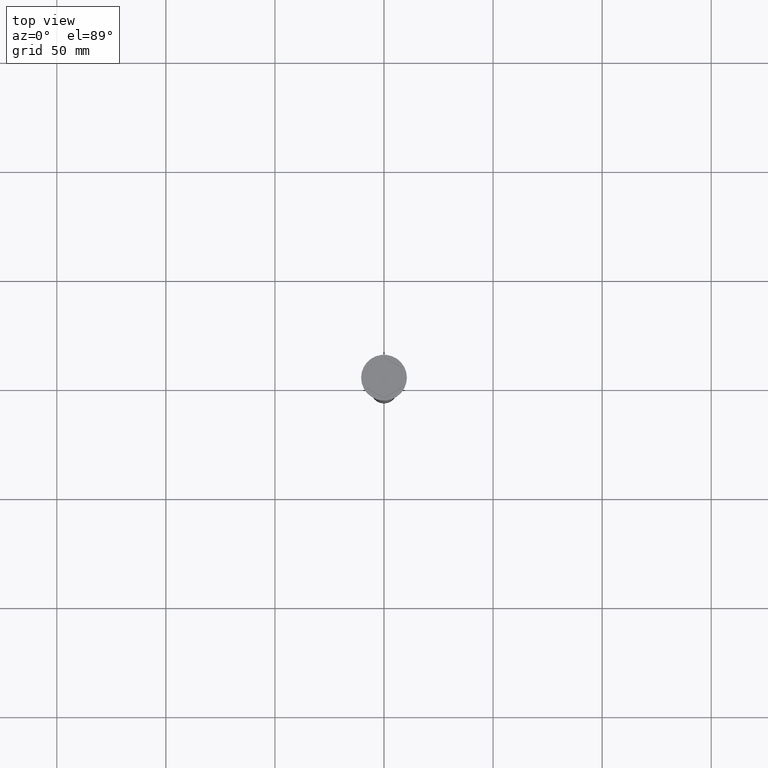
[diagram: clean part render]
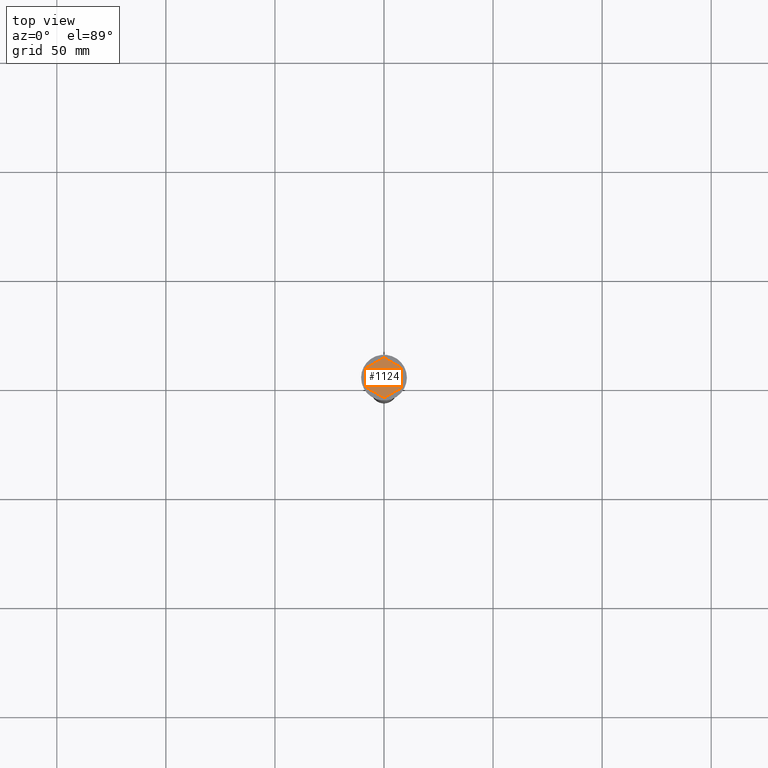
[diagram: same view with one face highlighted and labeled with its STEP entity id]
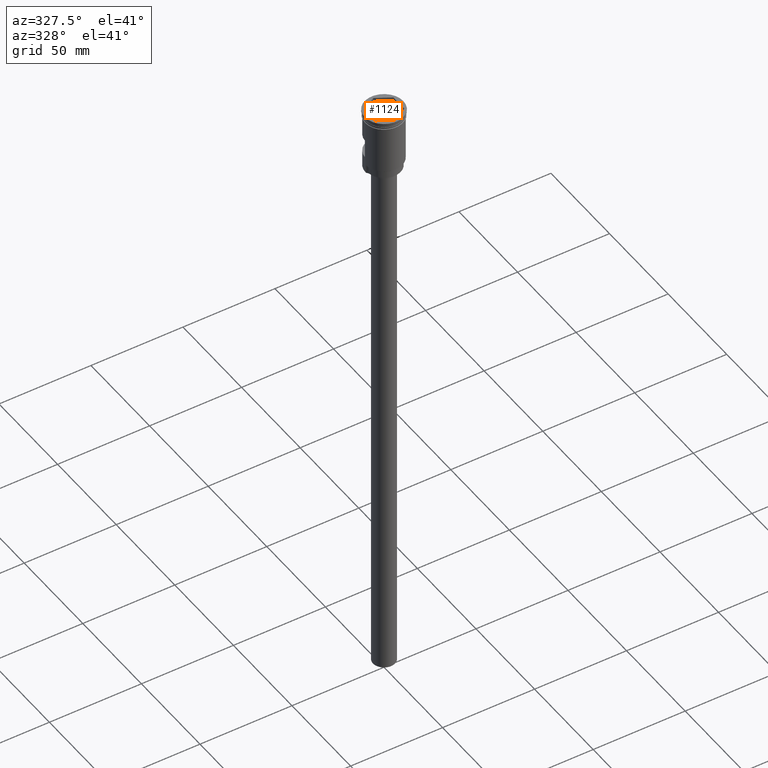
[diagram: same view with one face highlighted and labeled with its STEP entity id]
A machine part, top view. The second image highlights one B-rep face of the part: STEP entity #1124.
A second angle (auxiliary view) of the same face is appended — the face is thin or edge-on in the first view.
In plain terms, the highlighted planar face has unit normal (-0, 0, 1).
Its self-contained STEP definition (entity closure, byte-faithful):
#16 = VERTEX_POINT ( 'NONE', #26 ) ;
#26 = CARTESIAN_POINT ( 'NONE',  ( 8.000000000000000000, -4.618802153517008513, -2.000000000000000000 ) ) ;
#113 = VERTEX_POINT ( 'NONE', #647 ) ;
#213 = EDGE_CURVE ( 'NONE', #373, #113, #494, .T. ) ;
#233 = CARTESIAN_POINT ( 'NONE',  ( 0.000000000000000000, 9.237604307034009921, -2.000000000000000000 ) ) ;
#236 = LINE ( 'NONE', #729, #815 ) ;
#237 = ORIENTED_EDGE ( 'NONE', *, *, #259, .T. ) ;
#245 = VECTOR ( 'NONE', #1345, 999.9999999999998863 ) ;
#259 = EDGE_CURVE ( 'NONE', #1091, #16, #991, .T. ) ;
#272 = ORIENTED_EDGE ( 'NONE', *, *, #1311, .T. ) ;
#274 = DIRECTION ( 'NONE',  ( -0.000000000000000000, 0.000000000000000000, 1.000000000000000000 ) ) ;
#310 = EDGE_LOOP ( 'NONE', ( #869, #1515, #1358, #1248, #237, #272 ) ) ;
#320 = VECTOR ( 'NONE', #1004, 999.9999999999998863 ) ;
#373 = VERTEX_POINT ( 'NONE', #1027 ) ;
#375 = VECTOR ( 'NONE', #883, 999.9999999999998863 ) ;
#394 = LINE ( 'NONE', #763, #375 ) ;
#406 = PLANE ( 'NONE',  #633 ) ;
#494 = LINE ( 'NONE', #606, #1374 ) ;
#495 = CARTESIAN_POINT ( 'NONE',  ( -4.000000000000000000, -6.928203230275510549, -2.000000000000000000 ) ) ;
#606 = CARTESIAN_POINT ( 'NONE',  ( -8.000000000000000000, 0.000000000000000000, -2.000000000000000000 ) ) ;
#609 = VECTOR ( 'NONE', #1241, 999.9999999999998863 ) ;
#633 = AXIS2_PLACEMENT_3D ( 'NONE', #1384, #274, #1154 ) ;
#647 = CARTESIAN_POINT ( 'NONE',  ( -8.000000000000000000, -4.618802153517008513, -2.000000000000000000 ) ) ;
#652 = CARTESIAN_POINT ( 'NONE',  ( -3.999999999999998224, 6.928203230275506108, -2.000000000000000000 ) ) ;
#681 = VERTEX_POINT ( 'NONE', #233 ) ;
#729 = CARTESIAN_POINT ( 'NONE',  ( 8.000000000000000000, 0.000000000000000000, -2.000000000000000000 ) ) ;
#763 = CARTESIAN_POINT ( 'NONE',  ( 3.999999999999998224, 6.928203230275506108, -2.000000000000000000 ) ) ;
#775 = CARTESIAN_POINT ( 'NONE',  ( 8.000000000000000000, 4.618802153517003184, -2.000000000000000000 ) ) ;
#815 = VECTOR ( 'NONE', #1315, 1000.000000000000000 ) ;
#869 = ORIENTED_EDGE ( 'NONE', *, *, #1080, .T. ) ;
#883 = DIRECTION ( 'NONE',  ( -0.8660254037844387076, 0.5000000000000001110, 0.000000000000000000 ) ) ;
#886 = EDGE_CURVE ( 'NONE', #681, #373, #1247, .T. ) ;
#991 = LINE ( 'NONE', #1134, #609 ) ;
#1004 = DIRECTION ( 'NONE',  ( -0.8660254037844387076, -0.5000000000000001110, 0.000000000000000000 ) ) ;
#1027 = CARTESIAN_POINT ( 'NONE',  ( -8.000000000000000000, 4.618802153517002296, -2.000000000000000000 ) ) ;
#1080 = EDGE_CURVE ( 'NONE', #1183, #681, #394, .T. ) ;
#1091 = VERTEX_POINT ( 'NONE', #1355 ) ;
#1124 = ADVANCED_FACE ( 'NONE', ( #1490 ), #406, .T. ) ;
#1134 = CARTESIAN_POINT ( 'NONE',  ( 4.000000000000000000, -6.928203230275510549, -2.000000000000000000 ) ) ;
#1154 = DIRECTION ( 'NONE',  ( 1.000000000000000000, 0.000000000000000000, 0.000000000000000000 ) ) ;
#1183 = VERTEX_POINT ( 'NONE', #775 ) ;
#1241 = DIRECTION ( 'NONE',  ( 0.8660254037844387076, 0.4999999999999999445, 0.000000000000000000 ) ) ;
#1247 = LINE ( 'NONE', #652, #320 ) ;
#1248 = ORIENTED_EDGE ( 'NONE', *, *, #1601, .T. ) ;
#1311 = EDGE_CURVE ( 'NONE', #16, #1183, #236, .T. ) ;
#1315 = DIRECTION ( 'NONE',  ( 0.000000000000000000, 1.000000000000000000, -0.000000000000000000 ) ) ;
#1337 = LINE ( 'NONE', #495, #245 ) ;
#1345 = DIRECTION ( 'NONE',  ( 0.8660254037844387076, -0.4999999999999999445, 0.000000000000000000 ) ) ;
#1355 = CARTESIAN_POINT ( 'NONE',  ( 0.000000000000000000, -9.237604307034013473, -2.000000000000000000 ) ) ;
#1358 = ORIENTED_EDGE ( 'NONE', *, *, #213, .T. ) ;
#1374 = VECTOR ( 'NONE', #1575, 1000.000000000000000 ) ;
#1384 = CARTESIAN_POINT ( 'NONE',  ( 0.000000000000000000, 0.000000000000000000, -2.000000000000000000 ) ) ;
#1490 = FACE_OUTER_BOUND ( 'NONE', #310, .T. ) ;
#1515 = ORIENTED_EDGE ( 'NONE', *, *, #886, .T. ) ;
#1575 = DIRECTION ( 'NONE',  ( 0.000000000000000000, -1.000000000000000000, 0.000000000000000000 ) ) ;
#1601 = EDGE_CURVE ( 'NONE', #113, #1091, #1337, .T. ) ;